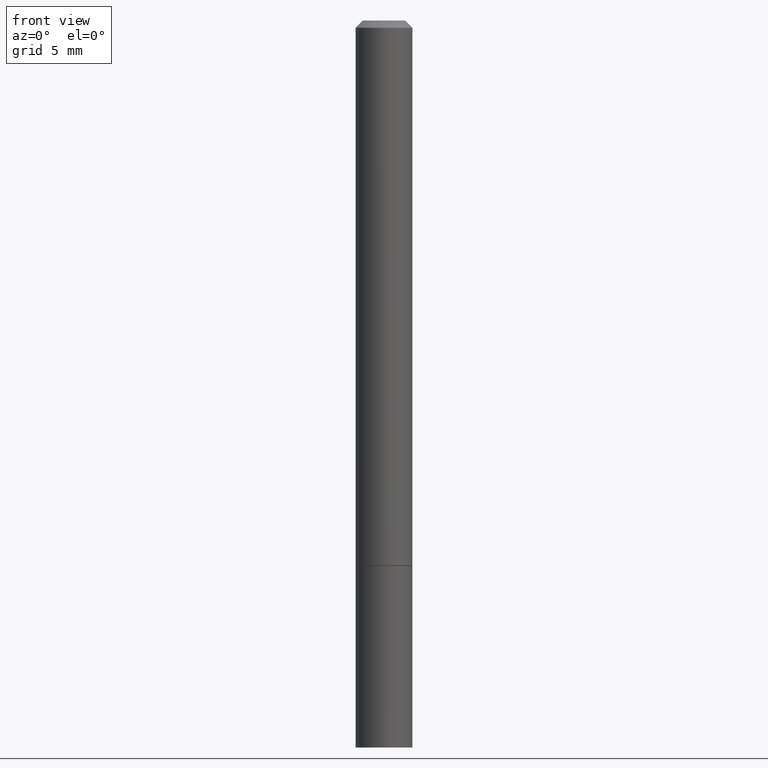
[diagram: clean part render]
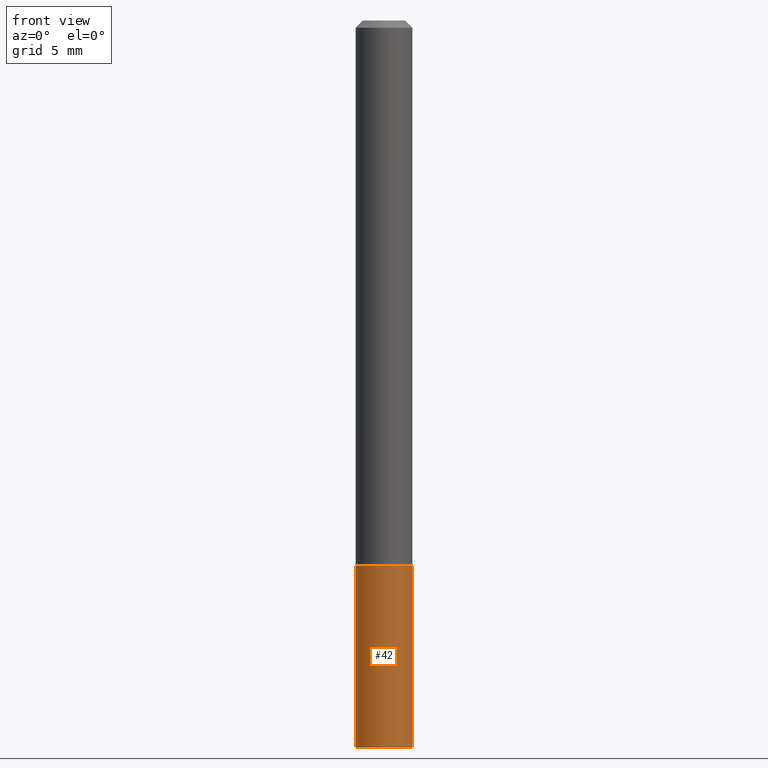
[diagram: same view with one face highlighted and labeled with its STEP entity id]
A machine part, front view. The second image highlights one B-rep face of the part: STEP entity #42.
In plain terms, the highlighted cylindrical surface (edge-blend (fillet) strip) has radius 1.9837 mm, axis along (-0, 0, 1).
Its self-contained STEP definition (entity closure, byte-faithful):
#12 = LINE ( 'NONE', #373, #55 ) ;
#13 = EDGE_LOOP ( 'NONE', ( #302, #257, #346, #352 ) ) ;
#15 = VERTEX_POINT ( 'NONE', #120 ) ;
#18 = EDGE_CURVE ( 'NONE', #200, #15, #203, .T. ) ;
#27 = AXIS2_PLACEMENT_3D ( 'NONE', #201, #169, #131 ) ;
#33 = AXIS2_PLACEMENT_3D ( 'NONE', #186, #99, #274 ) ;
#35 = CARTESIAN_POINT ( 'NONE',  ( -0.07810000000000000275, -5.555158466346866012E-15, -1.499999999999999778 ) ) ;
#42 = ADVANCED_FACE ( 'NONE', ( #64 ), #311, .T. ) ;
#55 = VECTOR ( 'NONE', #106, 39.37007874015748143 ) ;
#62 = VECTOR ( 'NONE', #177, 39.37007874015748143 ) ;
#64 = FACE_OUTER_BOUND ( 'NONE', #13, .T. ) ;
#65 = DIRECTION ( 'NONE',  ( -2.445468806185136597E-29, 3.491481338843145583E-15, 1.000000000000000000 ) ) ;
#87 = CARTESIAN_POINT ( 'NONE',  ( 0.07810000000000000275, -5.453693851272974364E-16, 3.808294061896625703E-30 ) ) ;
#99 = DIRECTION ( 'NONE',  ( -2.445468806185136597E-29, 3.491481338843145583E-15, 1.000000000000000000 ) ) ;
#106 = DIRECTION ( 'NONE',  ( -2.445468806185136877E-29, 3.491481338843145188E-15, 1.000000000000000000 ) ) ;
#120 = CARTESIAN_POINT ( 'NONE',  ( 0.07810000000000000275, -5.782591393392014824E-15, -1.499999999999999778 ) ) ;
#125 = CIRCLE ( 'NONE', #140, 0.07810000000000000275 ) ;
#131 = DIRECTION ( 'NONE',  ( 1.000000000000000000, -6.982962677686266711E-15, 0.000000000000000000 ) ) ;
#140 = AXIS2_PLACEMENT_3D ( 'NONE', #312, #65, #188 ) ;
#143 = EDGE_CURVE ( 'NONE', #374, #200, #125, .T. ) ;
#160 = CIRCLE ( 'NONE', #27, 0.07810000000000000275 ) ;
#165 = VERTEX_POINT ( 'NONE', #35 ) ;
#169 = DIRECTION ( 'NONE',  ( -2.445468806185136597E-29, 3.491481338843145583E-15, 1.000000000000000000 ) ) ;
#177 = DIRECTION ( 'NONE',  ( -2.445468806185136877E-29, 3.491481338843145188E-15, 1.000000000000000000 ) ) ;
#183 = CARTESIAN_POINT ( 'NONE',  ( -0.07809999999999991949, -6.437593292558994518E-15, -2.000000000000000000 ) ) ;
#186 = CARTESIAN_POINT ( 'NONE',  ( 0.000000000000000000, 0.000000000000000000, 0.000000000000000000 ) ) ;
#188 = DIRECTION ( 'NONE',  ( 1.000000000000000000, -6.982962677686266711E-15, 0.000000000000000000 ) ) ;
#200 = VERTEX_POINT ( 'NONE', #376 ) ;
#201 = CARTESIAN_POINT ( 'NONE',  ( 3.668203209277704335E-29, -5.237222008264717388E-15, -1.499999999999999778 ) ) ;
#203 = LINE ( 'NONE', #87, #62 ) ;
#214 = EDGE_CURVE ( 'NONE', #165, #15, #160, .T. ) ;
#249 = EDGE_CURVE ( 'NONE', #374, #165, #12, .T. ) ;
#257 = ORIENTED_EDGE ( 'NONE', *, *, #143, .T. ) ;
#274 = DIRECTION ( 'NONE',  ( 1.000000000000000000, -6.982962677686266711E-15, 4.876176775795935232E-29 ) ) ;
#302 = ORIENTED_EDGE ( 'NONE', *, *, #249, .F. ) ;
#311 = CYLINDRICAL_SURFACE ( 'NONE', #33, 0.07810000000000000275 ) ;
#312 = CARTESIAN_POINT ( 'NONE',  ( 4.890937612370273194E-29, -6.982962677686291165E-15, -2.000000000000000000 ) ) ;
#346 = ORIENTED_EDGE ( 'NONE', *, *, #18, .T. ) ;
#352 = ORIENTED_EDGE ( 'NONE', *, *, #214, .F. ) ;
#373 = CARTESIAN_POINT ( 'NONE',  ( -0.07810000000000000275, 5.549338766286382647E-16, -3.841688305489081275E-30 ) ) ;
#374 = VERTEX_POINT ( 'NONE', #183 ) ;
#376 = CARTESIAN_POINT ( 'NONE',  ( 0.07809999999999991949, -7.518767571312248168E-15, -2.000000000000000000 ) ) ;